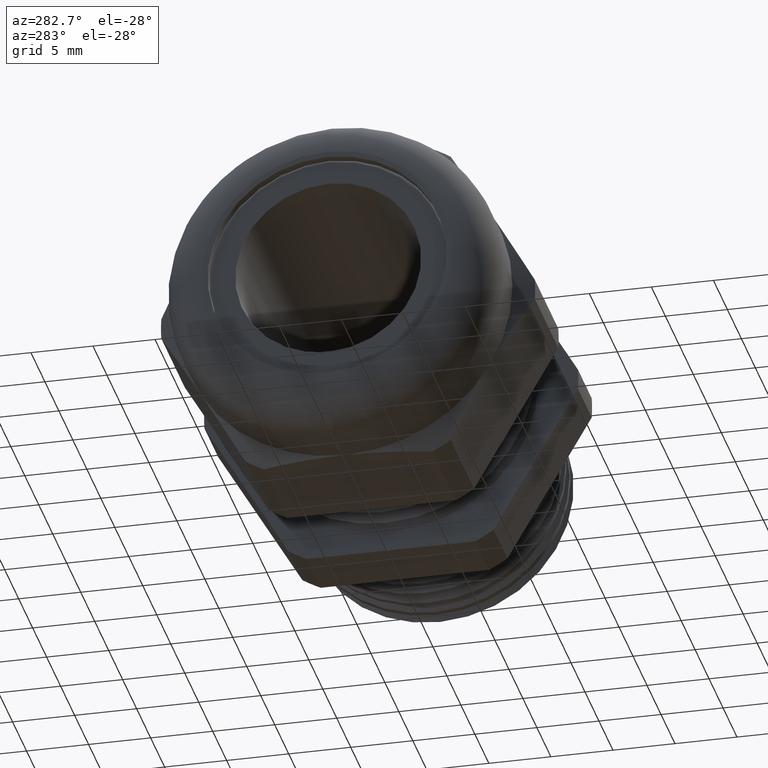
[diagram: clean part render]
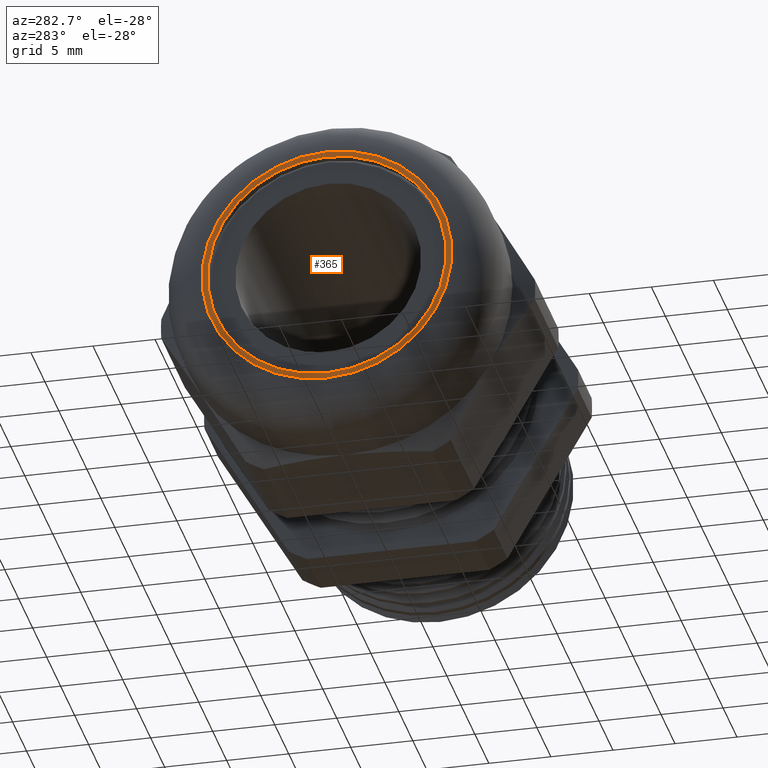
[diagram: same view with one face highlighted and labeled with its STEP entity id]
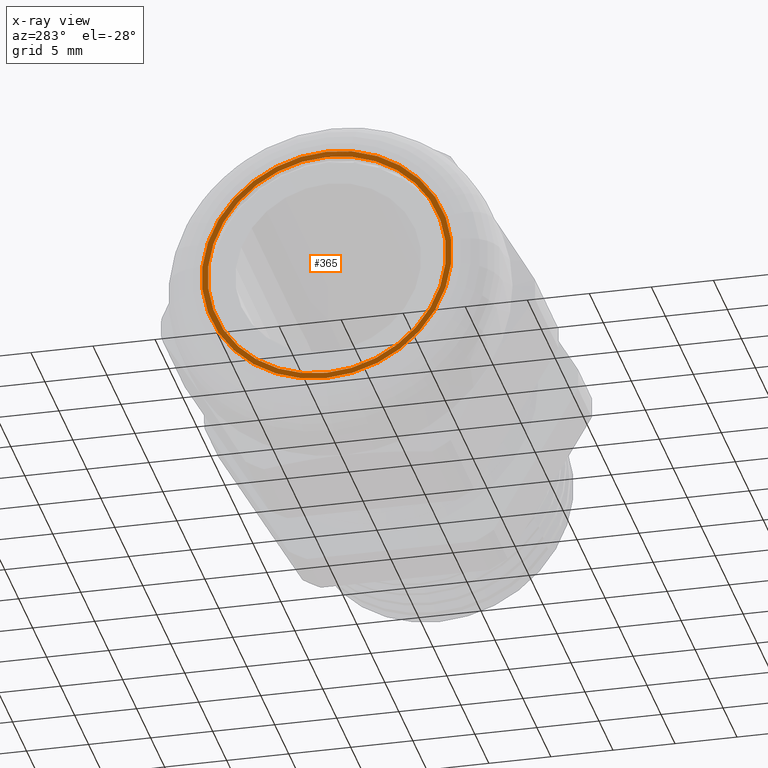
[diagram: x-ray of the same camera — body ghosted, the highlighted face saturated]
A machine part, auxiliary view. The second image highlights one B-rep face of the part: STEP entity #365.
The next image is the same camera in x-ray: the body ghosted, the highlighted face saturated — about 0% of this face is hidden behind the body in this view.
In plain terms, the highlighted planar face has unit normal (1, 0, 0).
Its self-contained STEP definition (entity closure, byte-faithful):
#290 = EDGE_CURVE ( 'NONE', #665, #662, #1671, .T. ) ;
#349 = ORIENTED_EDGE ( 'NONE', *, *, #664, .F. ) ;
#365 = ADVANCED_FACE ( 'NONE', ( #1765, #1764 ), #1763, .F. ) ;
#366 = EDGE_LOOP ( 'NONE', ( #367, #369 ) ) ;
#367 = ORIENTED_EDGE ( 'NONE', *, *, #368, .T. ) ;
#368 = EDGE_CURVE ( 'NONE', #970, #1039, #1758, .T. ) ;
#369 = ORIENTED_EDGE ( 'NONE', *, *, #1015, .T. ) ;
#370 = EDGE_LOOP ( 'NONE', ( #371, #349 ) ) ;
#371 = ORIENTED_EDGE ( 'NONE', *, *, #290, .F. ) ;
#662 = VERTEX_POINT ( 'NONE', #2150 ) ;
#664 = EDGE_CURVE ( 'NONE', #662, #665, #2211, .T. ) ;
#665 = VERTEX_POINT ( 'NONE', #2206 ) ;
#970 = VERTEX_POINT ( 'NONE', #2767 ) ;
#1015 = EDGE_CURVE ( 'NONE', #1039, #970, #2867, .T. ) ;
#1039 = VERTEX_POINT ( 'NONE', #2908 ) ;
#1667 = DIRECTION ( 'NONE',  ( 0.0000000000000000000, 0.0000000000000000000, 1.000000000000000000 ) ) ;
#1668 = DIRECTION ( 'NONE',  ( -1.000000000000000000, 0.0000000000000000000, 0.0000000000000000000 ) ) ;
#1669 = CARTESIAN_POINT ( 'NONE',  ( -1.100000000000000100, 0.0000000000000000000, 0.0000000000000000000 ) ) ;
#1670 = AXIS2_PLACEMENT_3D ( 'NONE', #1669, #1668, #1667 ) ;
#1671 = CIRCLE ( 'NONE', #1670, 0.3782499999999999800 ) ;
#1758 = CIRCLE ( 'NONE', #1822, 0.3963999999999998100 ) ;
#1759 = DIRECTION ( 'NONE',  ( 0.0000000000000000000, 0.0000000000000000000, -1.000000000000000000 ) ) ;
#1760 = DIRECTION ( 'NONE',  ( 1.000000000000000000, 0.0000000000000000000, 0.0000000000000000000 ) ) ;
#1761 = CARTESIAN_POINT ( 'NONE',  ( -1.100000000000000100, 0.4399999999999999500, 0.0000000000000000000 ) ) ;
#1762 = AXIS2_PLACEMENT_3D ( 'NONE', #1761, #1760, #1759 ) ;
#1763 = PLANE ( 'NONE',  #1762 ) ;
#1764 = FACE_BOUND ( 'NONE', #370, .T. ) ;
#1765 = FACE_OUTER_BOUND ( 'NONE', #366, .T. ) ;
#1819 = DIRECTION ( 'NONE',  ( 0.0000000000000000000, 0.0000000000000000000, -1.000000000000000000 ) ) ;
#1820 = DIRECTION ( 'NONE',  ( -1.000000000000000000, 0.0000000000000000000, 0.0000000000000000000 ) ) ;
#1821 = CARTESIAN_POINT ( 'NONE',  ( -1.100000000000000100, 0.0000000000000000000, 0.0000000000000000000 ) ) ;
#1822 = AXIS2_PLACEMENT_3D ( 'NONE', #1821, #1820, #1819 ) ;
#2150 = CARTESIAN_POINT ( 'NONE',  ( -1.100000000000000100, 4.632226517774863400E-017, -0.3782499999999999800 ) ) ;
#2206 = CARTESIAN_POINT ( 'NONE',  ( -1.100000000000000100, 0.0000000000000000000, 0.3782499999999999800 ) ) ;
#2207 = DIRECTION ( 'NONE',  ( 0.0000000000000000000, 0.0000000000000000000, 1.000000000000000000 ) ) ;
#2208 = DIRECTION ( 'NONE',  ( -1.000000000000000000, 0.0000000000000000000, 0.0000000000000000000 ) ) ;
#2209 = CARTESIAN_POINT ( 'NONE',  ( -1.100000000000000100, 0.0000000000000000000, 0.0000000000000000000 ) ) ;
#2210 = AXIS2_PLACEMENT_3D ( 'NONE', #2209, #2208, #2207 ) ;
#2211 = CIRCLE ( 'NONE', #2210, 0.3782499999999999800 ) ;
#2767 = CARTESIAN_POINT ( 'NONE',  ( -1.100000000000000100, 0.0000000000000000000, -0.3963999999999998100 ) ) ;
#2863 = DIRECTION ( 'NONE',  ( 0.0000000000000000000, 0.0000000000000000000, -1.000000000000000000 ) ) ;
#2864 = DIRECTION ( 'NONE',  ( -1.000000000000000000, 0.0000000000000000000, 0.0000000000000000000 ) ) ;
#2865 = CARTESIAN_POINT ( 'NONE',  ( -1.100000000000000100, 0.0000000000000000000, 0.0000000000000000000 ) ) ;
#2866 = AXIS2_PLACEMENT_3D ( 'NONE', #2865, #2864, #2863 ) ;
#2867 = CIRCLE ( 'NONE', #2866, 0.3963999999999998100 ) ;
#2908 = CARTESIAN_POINT ( 'NONE',  ( -1.100000000000000100, 5.672563973650537800E-017, 0.3963999999999998100 ) ) ;